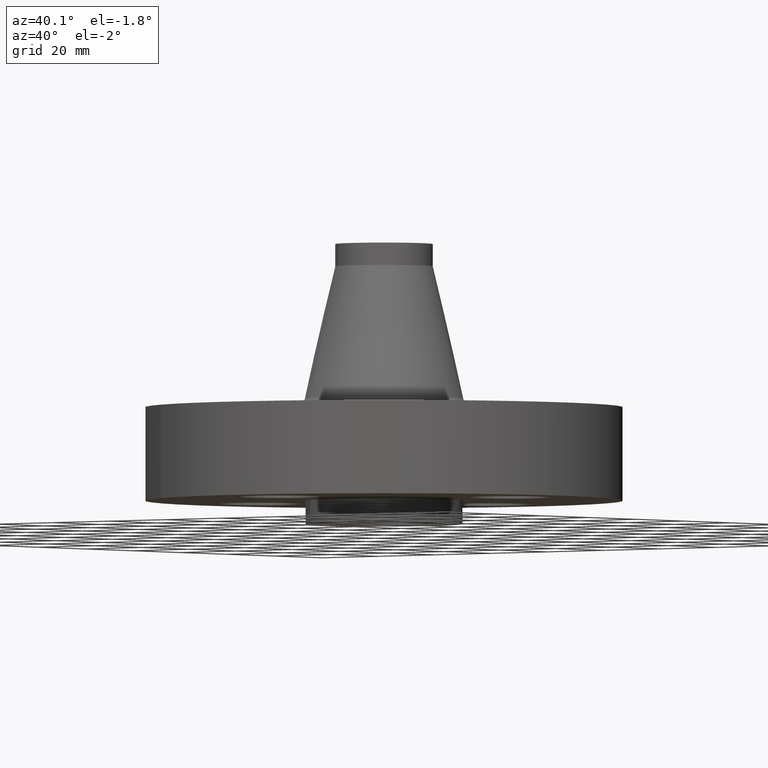
[diagram: clean part render]
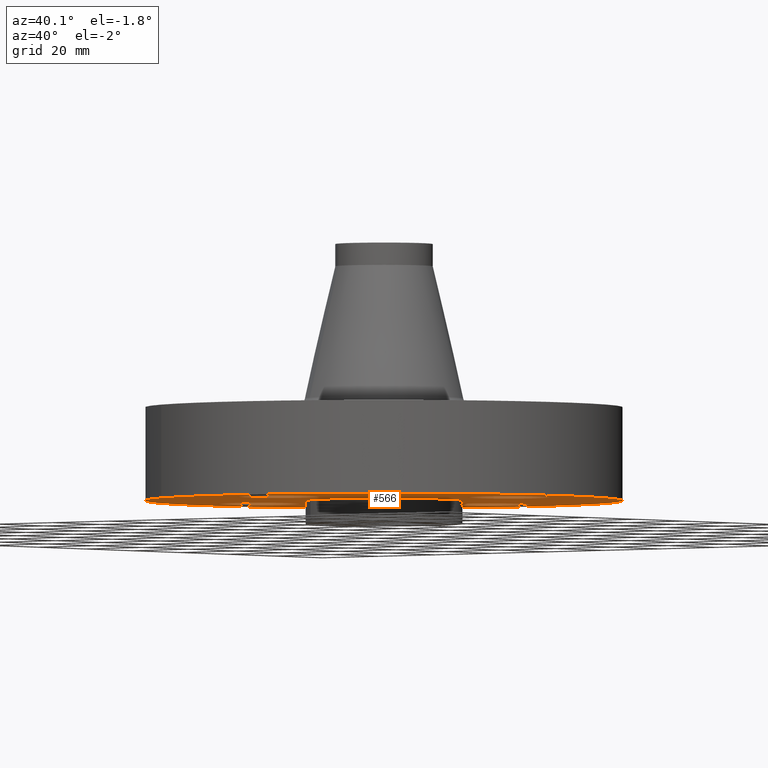
[diagram: same view with one face highlighted and labeled with its STEP entity id]
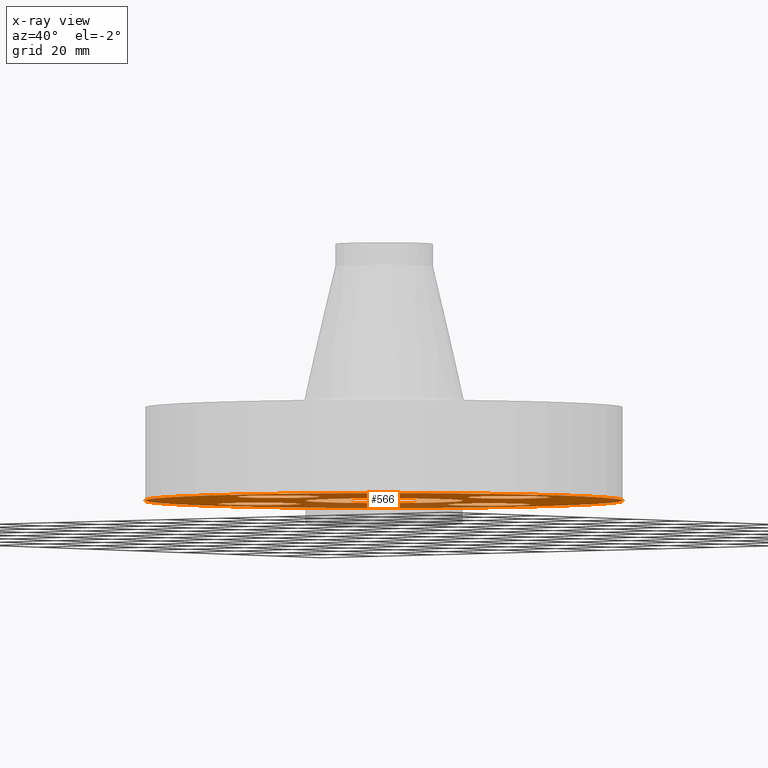
[diagram: x-ray of the same camera — body ghosted, the highlighted face saturated]
A machine part, auxiliary view. The second image highlights one B-rep face of the part: STEP entity #566.
The next image is the same camera in x-ray: the body ghosted, the highlighted face saturated — about 19% of this face is hidden behind the body in this view.
In plain terms, the highlighted planar face has unit normal (0, 0, -1).
Its self-contained STEP definition (entity closure, byte-faithful):
#51=AXIS2_PLACEMENT_3D('Circle Axis2P3D',#49,#50,$) ;
#77=AXIS2_PLACEMENT_3D('Circle Axis2P3D',#75,#76,$) ;
#99=AXIS2_PLACEMENT_3D('Circle Axis2P3D',#97,#98,$) ;
#134=AXIS2_PLACEMENT_3D('Circle Axis2P3D',#132,#133,$) ;
#466=AXIS2_PLACEMENT_3D('Circle Axis2P3D',#464,#465,$) ;
#485=AXIS2_PLACEMENT_3D('Circle Axis2P3D',#483,#484,$) ;
#498=AXIS2_PLACEMENT_3D('Plane Axis2P3D',#495,#496,#497) ;
#514=AXIS2_PLACEMENT_3D('Circle Axis2P3D',#512,#513,$) ;
#523=AXIS2_PLACEMENT_3D('Circle Axis2P3D',#521,#522,$) ;
#532=AXIS2_PLACEMENT_3D('Circle Axis2P3D',#530,#531,$) ;
#541=AXIS2_PLACEMENT_3D('Circle Axis2P3D',#539,#540,$) ;
#550=AXIS2_PLACEMENT_3D('Circle Axis2P3D',#548,#549,$) ;
#559=AXIS2_PLACEMENT_3D('Circle Axis2P3D',#557,#558,$) ;
#44=CARTESIAN_POINT('Vertex',(1.36386367277,0.210947236987,0.)) ;
#49=CARTESIAN_POINT('Axis2P3D Location',(1.75000000001,0.,0.)) ;
#53=CARTESIAN_POINT('Vertex',(2.13613632724,-0.210947236987,0.)) ;
#75=CARTESIAN_POINT('Axis2P3D Location',(1.75000000001,0.,0.)) ;
#97=CARTESIAN_POINT('Axis2P3D Location',(0.,0.,2.79741234551E-016)) ;
#101=CARTESIAN_POINT('Vertex',(-1.22732937883,-2.24661135845,2.79741234551E-016)) ;
#103=CARTESIAN_POINT('Vertex',(1.22732937883,2.24661135845,2.79741234551E-016)) ;
#132=CARTESIAN_POINT('Axis2P3D Location',(0.,0.,2.79741234551E-016)) ;
#461=CARTESIAN_POINT('Vertex',(-0.405114580122,-0.7415572648,0.)) ;
#464=CARTESIAN_POINT('Axis2P3D Location',(0.,0.,0.)) ;
#468=CARTESIAN_POINT('Vertex',(0.405114580122,0.7415572648,0.)) ;
#483=CARTESIAN_POINT('Axis2P3D Location',(0.,0.,0.)) ;
#495=CARTESIAN_POINT('Axis2P3D Location',(0.,0.845000000003,0.)) ;
#512=CARTESIAN_POINT('Axis2P3D Location',(3.84644197508E-016,-1.75000000001,0.)) ;
#516=CARTESIAN_POINT('Vertex',(0.210947236987,-1.36386367277,0.)) ;
#518=CARTESIAN_POINT('Vertex',(-0.210947236987,-2.13613632724,0.)) ;
#521=CARTESIAN_POINT('Axis2P3D Location',(3.49676543189E-017,-1.75000000001,0.)) ;
#530=CARTESIAN_POINT('Axis2P3D Location',(-1.75000000001,-2.79741234551E-016,0.)) ;
#534=CARTESIAN_POINT('Vertex',(-1.36386367277,-0.210947236987,0.)) ;
#536=CARTESIAN_POINT('Vertex',(-2.13613632724,0.210947236987,0.)) ;
#539=CARTESIAN_POINT('Axis2P3D Location',(-1.75000000001,-2.79741234551E-016,0.)) ;
#548=CARTESIAN_POINT('Axis2P3D Location',(-3.1470888887E-016,1.75000000001,0.)) ;
#552=CARTESIAN_POINT('Vertex',(-0.210947236987,1.36386367277,0.)) ;
#554=CARTESIAN_POINT('Vertex',(0.210947236987,2.13613632724,0.)) ;
#557=CARTESIAN_POINT('Axis2P3D Location',(-3.1470888887E-016,1.75000000001,0.)) ;
#50=DIRECTION('Axis2P3D Direction',(0.,-0.,-0.0393700787402)) ;
#76=DIRECTION('Axis2P3D Direction',(0.,-0.,-0.0393700787402)) ;
#98=DIRECTION('Axis2P3D Direction',(0.,0.,-0.0393700787402)) ;
#133=DIRECTION('Axis2P3D Direction',(0.,0.,-0.0393700787402)) ;
#465=DIRECTION('Axis2P3D Direction',(0.,0.,-0.0393700787402)) ;
#484=DIRECTION('Axis2P3D Direction',(0.,0.,-0.0393700787402)) ;
#496=DIRECTION('Axis2P3D Direction',(0.,0.,-0.0393700787402)) ;
#497=DIRECTION('Axis2P3D XDirection',(0.0393700787402,0.,0.)) ;
#513=DIRECTION('Axis2P3D Direction',(0.,0.,-0.0393700787402)) ;
#522=DIRECTION('Axis2P3D Direction',(0.,0.,-0.0393700787402)) ;
#531=DIRECTION('Axis2P3D Direction',(0.,0.,-0.0393700787402)) ;
#540=DIRECTION('Axis2P3D Direction',(0.,0.,-0.0393700787402)) ;
#549=DIRECTION('Axis2P3D Direction',(0.,0.,-0.0393700787402)) ;
#558=DIRECTION('Axis2P3D Direction',(0.,0.,-0.0393700787402)) ;
#501=ORIENTED_EDGE('',*,*,#105,.T.) ;
#502=ORIENTED_EDGE('',*,*,#136,.T.) ;
#505=ORIENTED_EDGE('',*,*,#79,.F.) ;
#506=ORIENTED_EDGE('',*,*,#55,.F.) ;
#509=ORIENTED_EDGE('',*,*,#487,.F.) ;
#510=ORIENTED_EDGE('',*,*,#470,.F.) ;
#527=ORIENTED_EDGE('',*,*,#520,.F.) ;
#528=ORIENTED_EDGE('',*,*,#525,.F.) ;
#545=ORIENTED_EDGE('',*,*,#538,.F.) ;
#546=ORIENTED_EDGE('',*,*,#543,.F.) ;
#563=ORIENTED_EDGE('',*,*,#556,.F.) ;
#564=ORIENTED_EDGE('',*,*,#561,.F.) ;
#507=FACE_BOUND('',#504,.T.) ;
#511=FACE_BOUND('',#508,.T.) ;
#529=FACE_BOUND('',#526,.T.) ;
#547=FACE_BOUND('',#544,.T.) ;
#565=FACE_BOUND('',#562,.T.) ;
#566=ADVANCED_FACE('PartBody',(#503,#507,#511,#529,#547,#565),#499,.T.) ;
#52=CIRCLE('generated circle',#51,0.440000000002) ;
#78=CIRCLE('generated circle',#77,0.440000000002) ;
#100=CIRCLE('generated circle',#99,2.56000000001) ;
#135=CIRCLE('generated circle',#134,2.56000000001) ;
#467=CIRCLE('generated circle',#466,0.845000000003) ;
#486=CIRCLE('generated circle',#485,0.845000000003) ;
#515=CIRCLE('generated circle',#514,0.440000000002) ;
#524=CIRCLE('generated circle',#523,0.440000000002) ;
#533=CIRCLE('generated circle',#532,0.440000000002) ;
#542=CIRCLE('generated circle',#541,0.440000000002) ;
#551=CIRCLE('generated circle',#550,0.440000000002) ;
#560=CIRCLE('generated circle',#559,0.440000000002) ;
#55=EDGE_CURVE('',#45,#54,#52,.T.) ;
#79=EDGE_CURVE('',#54,#45,#78,.T.) ;
#105=EDGE_CURVE('',#102,#104,#100,.T.) ;
#136=EDGE_CURVE('',#104,#102,#135,.T.) ;
#470=EDGE_CURVE('',#462,#469,#467,.T.) ;
#487=EDGE_CURVE('',#469,#462,#486,.T.) ;
#520=EDGE_CURVE('',#517,#519,#515,.T.) ;
#525=EDGE_CURVE('',#519,#517,#524,.T.) ;
#538=EDGE_CURVE('',#535,#537,#533,.T.) ;
#543=EDGE_CURVE('',#537,#535,#542,.T.) ;
#556=EDGE_CURVE('',#553,#555,#551,.T.) ;
#561=EDGE_CURVE('',#555,#553,#560,.T.) ;
#500=EDGE_LOOP('',(#501,#502)) ;
#504=EDGE_LOOP('',(#505,#506)) ;
#508=EDGE_LOOP('',(#509,#510)) ;
#526=EDGE_LOOP('',(#527,#528)) ;
#544=EDGE_LOOP('',(#545,#546)) ;
#562=EDGE_LOOP('',(#563,#564)) ;
#503=FACE_OUTER_BOUND('',#500,.T.) ;
#499=PLANE('',#498) ;
#45=VERTEX_POINT('',#44) ;
#54=VERTEX_POINT('',#53) ;
#102=VERTEX_POINT('',#101) ;
#104=VERTEX_POINT('',#103) ;
#462=VERTEX_POINT('',#461) ;
#469=VERTEX_POINT('',#468) ;
#517=VERTEX_POINT('',#516) ;
#519=VERTEX_POINT('',#518) ;
#535=VERTEX_POINT('',#534) ;
#537=VERTEX_POINT('',#536) ;
#553=VERTEX_POINT('',#552) ;
#555=VERTEX_POINT('',#554) ;